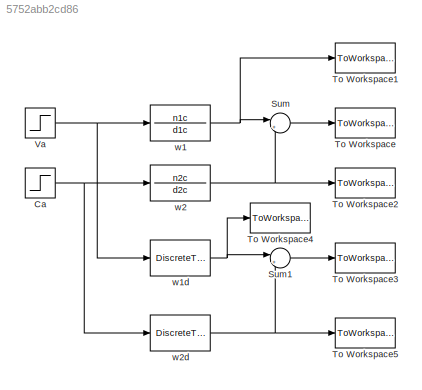
MODEL slx_5752abb2cd86
KIND model
CONFIG AbsTol = auto
CONFIG EnableMultiTasking = off
CONFIG FixedStep = auto
CONFIG MaxStep = auto
CONFIG MinStep = auto
CONFIG RelTol = 1e-3
CONFIG SampleTimeConstraint = Unconstrained
CONFIG Solver = VariableStepAuto
CONFIG SolverName = VariableStepAuto
CONFIG StartTime = 0.0
CONFIG StopTime = .3
BLOCK [Step] Ca
  SampleTime = 0
  Time = Tcarga
BLOCK [Sum] Sum
  IconShape = round
  InputSameDT = off
  Inputs = |+-
  OutDataTypeStr = Inherit: Inherit via internal rule
  Ports = [2, 1]
  SaturateOnIntegerOverflow = off
BLOCK [Sum] Sum1
  IconShape = round
  InputSameDT = off
  Inputs = |+-
  OutDataTypeStr = Inherit: Inherit via internal rule
  Ports = [2, 1]
  SaturateOnIntegerOverflow = off
BLOCK [ToWorkspace] To Workspace
  FixptAsFi = on
  MaxDataPoints = inf
  Ports = [1]
  SampleTime = -1
  Save2DSignal = 3-D array (concatenate along third dimension)
  SaveFormat = Timeseries
  VariableName = wm
BLOCK [ToWorkspace] To Workspace1
  FixptAsFi = on
  MaxDataPoints = inf
  Ports = [1]
  SampleTime = -1
  Save2DSignal = 3-D array (concatenate along third dimension)
  SaveFormat = Timeseries
  VariableName = wm1
BLOCK [ToWorkspace] To Workspace2
  FixptAsFi = on
  MaxDataPoints = inf
  Ports = [1]
  SampleTime = -1
  Save2DSignal = 3-D array (concatenate along third dimension)
  SaveFormat = Timeseries
  VariableName = wm2
BLOCK [ToWorkspace] To Workspace3
  FixptAsFi = on
  MaxDataPoints = inf
  Ports = [1]
  SampleTime = -1
  Save2DSignal = 3-D array (concatenate along third dimension)
  SaveFormat = Timeseries
  VariableName = wmd
BLOCK [ToWorkspace] To Workspace4
  FixptAsFi = on
  MaxDataPoints = inf
  Ports = [1]
  SampleTime = -1
  Save2DSignal = 3-D array (concatenate along third dimension)
  SaveFormat = Timeseries
  VariableName = wm1d
BLOCK [ToWorkspace] To Workspace5
  FixptAsFi = on
  MaxDataPoints = inf
  Ports = [1]
  SampleTime = -1
  Save2DSignal = 3-D array (concatenate along third dimension)
  SaveFormat = Timeseries
  VariableName = wm2d
BLOCK [Step] Va
  After = Va
  SampleTime = 0
  Time = 0
BLOCK [TransferFcn] w1
  Denominator = d1c
  Numerator = n1c
BLOCK [DiscreteTransferFcn] w1d
  Denominator = d1d
  InputPortMap = u0
  Numerator = n1d
  Ports = [1, 1]
  SampleTime = T0
BLOCK [TransferFcn] w2
  Denominator = d2c
  Numerator = n2c
BLOCK [DiscreteTransferFcn] w2d
  Denominator = d2d
  InputPortMap = u0
  Numerator = n2d
  Ports = [1, 1]
  SampleTime = T0
NET Ca:1 -> w2:1, w2d:1
LINE Sum1:1 -> To Workspace3:1
LINE Sum:1 -> To Workspace:1
NET Va:1 -> w1:1, w1d:1
NET w1:1 -> Sum:1, To Workspace1:1
NET w1d:1 -> Sum1:1, To Workspace4:1
NET w2:1 -> Sum:2, To Workspace2:1
NET w2d:1 -> Sum1:2, To Workspace5:1
note: NET lines group one-source signal fan-out (src -> all destinations, sorted); 1:1 wires keep LINE
